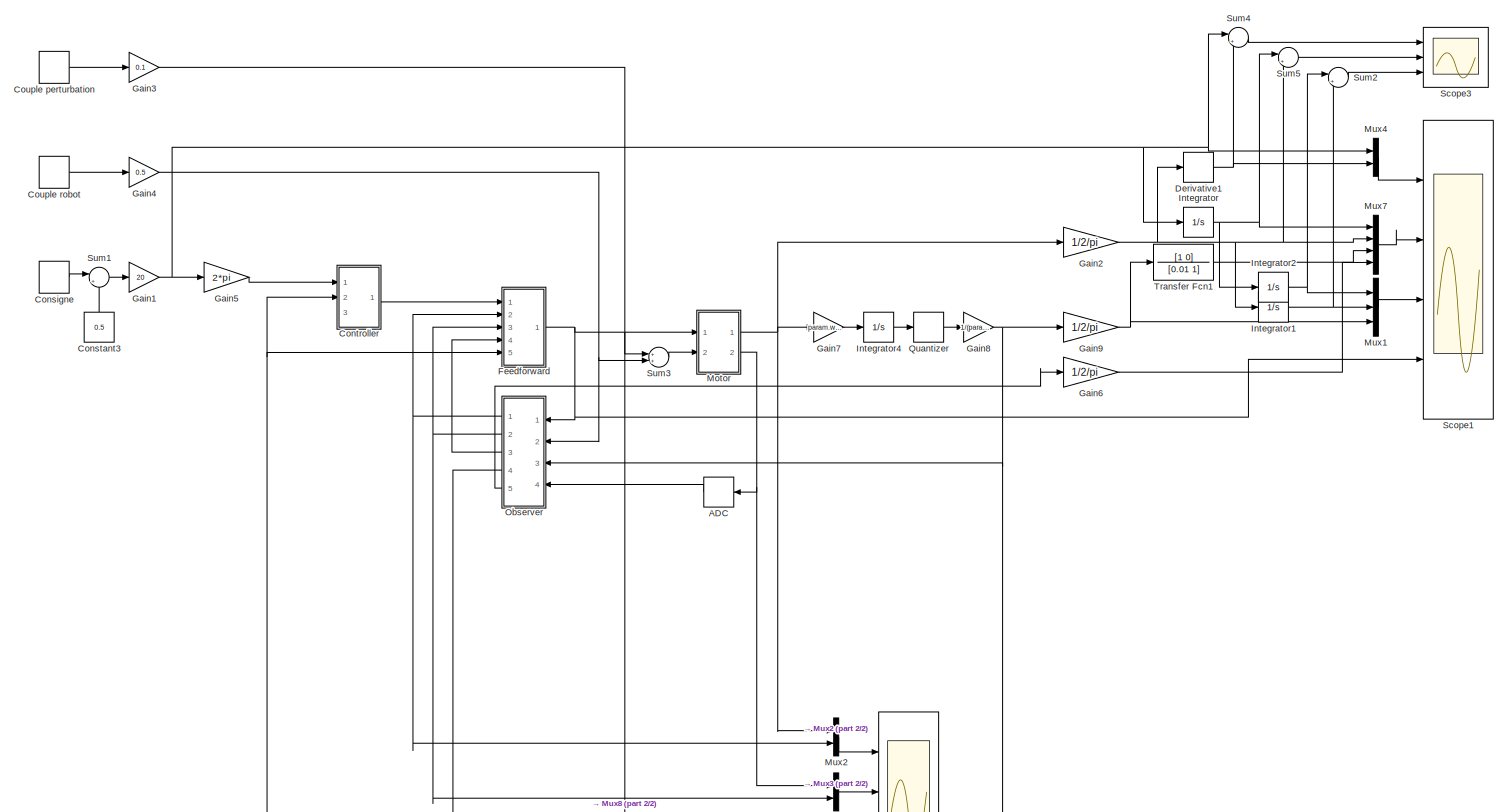
[diagram: root canvas - part 1/2, most of the canvas]
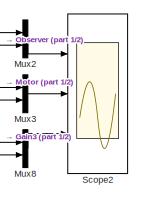
[diagram: root canvas - part 2/2, bottom center region]
MODEL slx_29d31e49ffb2
KIND model
BLOCK [TransportDelay] ADC
  DelayTime = param.adc.retard
  Ports = [1, 1]
BLOCK [DiscretePulseGenerator] Consigne
  Period = 1
  PhaseDelay = 0.25/2
  Ports = [0, 1]
  PulseType = Time based
  PulseWidth = 50
BLOCK [Constant] Constant3
  Value = 0.5
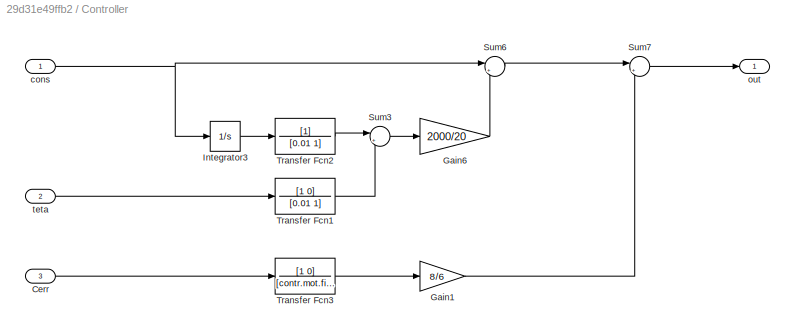
BLOCK [SubSystem] Controller
  Ports = [3, 1]
  RequestExecContextInheritance = off
BLOCK [Inport] Controller/Cerr
  IconDisplay = Port number
  Port = 3
BLOCK [Gain] Controller/Gain1
  Gain = 8/6
  OutDataTypeStr = Inherit: Inherit via internal rule
  ParamDataTypeStr = Inherit: Inherit via internal rule
  SaturateOnIntegerOverflow = off
BLOCK [Gain] Controller/Gain6
  Gain = 2000/20
  OutDataTypeStr = Inherit: Inherit via internal rule
  ParamDataTypeStr = Inherit: Inherit via internal rule
  SaturateOnIntegerOverflow = off
BLOCK [Integrator] Controller/Integrator3
  Ports = [1, 1]
BLOCK [Sum] Controller/Sum3
  IconShape = round
  InputSameDT = off
  Inputs = |+-
  OutDataTypeStr = Inherit: Inherit via internal rule
  Ports = [2, 1]
  SaturateOnIntegerOverflow = off
BLOCK [Sum] Controller/Sum6
  IconShape = round
  InputSameDT = off
  Inputs = |++
  OutDataTypeStr = Inherit: Inherit via internal rule
  Ports = [2, 1]
  SaturateOnIntegerOverflow = off
BLOCK [Sum] Controller/Sum7
  IconShape = round
  InputSameDT = off
  Inputs = |++
  OutDataTypeStr = Inherit: Inherit via internal rule
  Ports = [2, 1]
  SaturateOnIntegerOverflow = off
BLOCK [TransferFcn] Controller/Transfer Fcn1
  Denominator = [0.01 1]
  Numerator = [1 0]
BLOCK [TransferFcn] Controller/Transfer Fcn2
  Denominator = [0.01 1]
BLOCK [TransferFcn] Controller/Transfer Fcn3
  Denominator = [contr.mot.filter 1]
  Numerator = [1 0]
BLOCK [Inport] Controller/cons
  IconDisplay = Port number
BLOCK [Outport] Controller/out
  IconDisplay = Port number
BLOCK [Inport] Controller/teta
  IconDisplay = Port number
  Port = 2
BLOCK [DiscretePulseGenerator] Couple perturbation
  Period = 2/3
  PhaseDelay = 0.3
  Ports = [0, 1]
  PulseType = Time based
  PulseWidth = 50
BLOCK [DiscretePulseGenerator] Couple robot
  Period = 1.5
  PhaseDelay = 0.1
  Ports = [0, 1]
  PulseType = Time based
  PulseWidth = 50
BLOCK [Derivative] Derivative1
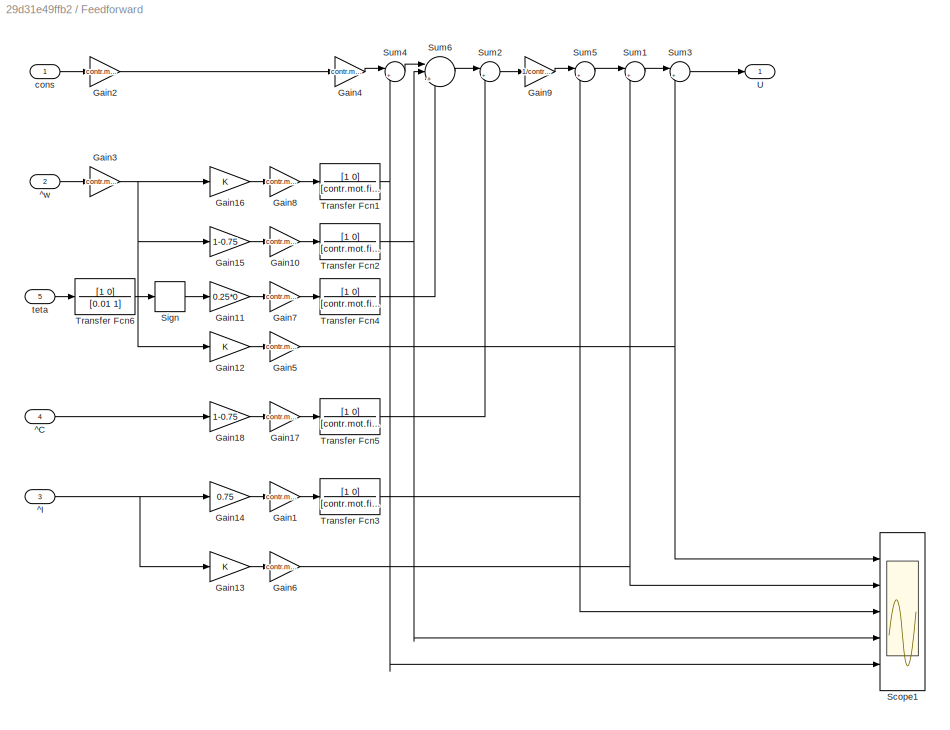
BLOCK [SubSystem] Feedforward
  Ports = [5, 1]
  RequestExecContextInheritance = off
BLOCK [Gain] Feedforward/Gain1
  Gain = contr.mot.L
  OutDataTypeStr = Inherit: Inherit via internal rule
  ParamDataTypeStr = Inherit: Inherit via internal rule
  SaturateOnIntegerOverflow = off
BLOCK [Gain] Feedforward/Gain10
  Gain = contr.mot.fv*contr.mot.L
  OutDataTypeStr = Inherit: Inherit via internal rule
  ParamDataTypeStr = Inherit: Inherit via internal rule
  SaturateOnIntegerOverflow = off
BLOCK [Gain] Feedforward/Gain11
  Gain = 0.25*0
  OutDataTypeStr = Inherit: Inherit via internal rule
  ParamDataTypeStr = Inherit: Inherit via internal rule
  SaturateOnIntegerOverflow = off
BLOCK [Gain] Feedforward/Gain12
  OutDataTypeStr = Inherit: Inherit via internal rule
  ParamDataTypeStr = Inherit: Inherit via internal rule
  SaturateOnIntegerOverflow = off
BLOCK [Gain] Feedforward/Gain13
  OutDataTypeStr = Inherit: Inherit via internal rule
  ParamDataTypeStr = Inherit: Inherit via internal rule
  SaturateOnIntegerOverflow = off
BLOCK [Gain] Feedforward/Gain14
  Gain = 0.75
  OutDataTypeStr = Inherit: Inherit via internal rule
  ParamDataTypeStr = Inherit: Inherit via internal rule
  SaturateOnIntegerOverflow = off
BLOCK [Gain] Feedforward/Gain15
  Gain = 1-0.75
  OutDataTypeStr = Inherit: Inherit via internal rule
  ParamDataTypeStr = Inherit: Inherit via internal rule
  SaturateOnIntegerOverflow = off
BLOCK [Gain] Feedforward/Gain16
  OutDataTypeStr = Inherit: Inherit via internal rule
  ParamDataTypeStr = Inherit: Inherit via internal rule
  SaturateOnIntegerOverflow = off
BLOCK [Gain] Feedforward/Gain17
  Gain = contr.mot.L
  OutDataTypeStr = Inherit: Inherit via internal rule
  ParamDataTypeStr = Inherit: Inherit via internal rule
  SaturateOnIntegerOverflow = off
BLOCK [Gain] Feedforward/Gain18
  Gain = 1-0.75
  OutDataTypeStr = Inherit: Inherit via internal rule
  ParamDataTypeStr = Inherit: Inherit via internal rule
  SaturateOnIntegerOverflow = off
BLOCK [Gain] Feedforward/Gain2
  Gain = contr.mot.rr
  OutDataTypeStr = Inherit: Inherit via internal rule
  ParamDataTypeStr = Inherit: Inherit via internal rule
  SaturateOnIntegerOverflow = off
BLOCK [Gain] Feedforward/Gain3
  Gain = contr.mot.rr
  OutDataTypeStr = Inherit: Inherit via internal rule
  ParamDataTypeStr = Inherit: Inherit via internal rule
  SaturateOnIntegerOverflow = off
BLOCK [Gain] Feedforward/Gain4
  Gain = contr.mot.J
  OutDataTypeStr = Inherit: Inherit via internal rule
  ParamDataTypeStr = Inherit: Inherit via internal rule
  SaturateOnIntegerOverflow = off
BLOCK [Gain] Feedforward/Gain5
  Gain = contr.mot.Ke
  OutDataTypeStr = Inherit: Inherit via internal rule
  ParamDataTypeStr = Inherit: Inherit via internal rule
  SaturateOnIntegerOverflow = off
BLOCK [Gain] Feedforward/Gain6
  Gain = contr.mot.R
  OutDataTypeStr = Inherit: Inherit via internal rule
  ParamDataTypeStr = Inherit: Inherit via internal rule
  SaturateOnIntegerOverflow = off
BLOCK [Gain] Feedforward/Gain7
  Gain = contr.mot.fs*contr.mot.L
  OutDataTypeStr = Inherit: Inherit via internal rule
  ParamDataTypeStr = Inherit: Inherit via internal rule
  SaturateOnIntegerOverflow = off
BLOCK [Gain] Feedforward/Gain8
  Gain = contr.mot.J
  OutDataTypeStr = Inherit: Inherit via internal rule
  ParamDataTypeStr = Inherit: Inherit via internal rule
  SaturateOnIntegerOverflow = off
BLOCK [Gain] Feedforward/Gain9
  Gain = 1/contr.mot.Kc
  OutDataTypeStr = Inherit: Inherit via internal rule
  ParamDataTypeStr = Inherit: Inherit via internal rule
  SaturateOnIntegerOverflow = off
BLOCK [Scope] Feedforward/Scope1
  Floating = off
  MaxDataPoints = 500000
  NumInputPorts = 5
  Ports = [5]
  SaveName = ScopeData1
  ShowLegends = off
  TimeRange = 3
  YMax = 15~10~15000~0.03~15
  YMin = -5~-10~-15000~-0.03~-15
BLOCK [Signum] Feedforward/Sign
  ZeroCross = off
BLOCK [Sum] Feedforward/Sum1
  IconShape = round
  InputSameDT = off
  Inputs = |++
  OutDataTypeStr = Inherit: Inherit via internal rule
  Ports = [2, 1]
  SaturateOnIntegerOverflow = off
BLOCK [Sum] Feedforward/Sum2
  IconShape = round
  InputSameDT = off
  Inputs = |++
  OutDataTypeStr = Inherit: Inherit via internal rule
  Ports = [2, 1]
  SaturateOnIntegerOverflow = off
BLOCK [Sum] Feedforward/Sum3
  IconShape = round
  InputSameDT = off
  Inputs = |++
  OutDataTypeStr = Inherit: Inherit via internal rule
  Ports = [2, 1]
  SaturateOnIntegerOverflow = off
BLOCK [Sum] Feedforward/Sum4
  IconShape = round
  InputSameDT = off
  Inputs = |+-
  OutDataTypeStr = Inherit: Inherit via internal rule
  Ports = [2, 1]
  SaturateOnIntegerOverflow = off
BLOCK [Sum] Feedforward/Sum5
  IconShape = round
  InputSameDT = off
  Inputs = |++
  OutDataTypeStr = Inherit: Inherit via internal rule
  Ports = [2, 1]
  SaturateOnIntegerOverflow = off
BLOCK [Sum] Feedforward/Sum6
  IconShape = round
  InputSameDT = off
  Inputs = ||+++
  OutDataTypeStr = Inherit: Inherit via internal rule
  Ports = [3, 1]
  SaturateOnIntegerOverflow = off
BLOCK [TransferFcn] Feedforward/Transfer Fcn1
  Denominator = [contr.mot.filter 1]
  Numerator = [1 0]
BLOCK [TransferFcn] Feedforward/Transfer Fcn2
  Denominator = [contr.mot.filter 1]
  Numerator = [1 0]
BLOCK [TransferFcn] Feedforward/Transfer Fcn3
  Denominator = [contr.mot.filter 1]
  Numerator = [1 0]
BLOCK [TransferFcn] Feedforward/Transfer Fcn4
  Denominator = [contr.mot.filter 1]
  Numerator = [1 0]
BLOCK [TransferFcn] Feedforward/Transfer Fcn5
  Denominator = [contr.mot.filter 1]
  Numerator = [1 0]
BLOCK [TransferFcn] Feedforward/Transfer Fcn6
  Denominator = [0.01 1]
  Numerator = [1 0]
BLOCK [Outport] Feedforward/U
  IconDisplay = Port number
BLOCK [Inport] Feedforward/^C
  IconDisplay = Port number
  Port = 4
BLOCK [Inport] Feedforward/^I
  IconDisplay = Port number
  Port = 3
BLOCK [Inport] Feedforward/^w
  IconDisplay = Port number
  Port = 2
BLOCK [Inport] Feedforward/cons
  IconDisplay = Port number
BLOCK [Inport] Feedforward/teta
  IconDisplay = Port number
  Port = 5
BLOCK [Gain] Gain1
  Gain = 20
  OutDataTypeStr = Inherit: Inherit via internal rule
  ParamDataTypeStr = Inherit: Inherit via internal rule
  SaturateOnIntegerOverflow = off
BLOCK [Gain] Gain2
  Gain = 1/2/pi
  OutDataTypeStr = Inherit: Inherit via internal rule
  ParamDataTypeStr = Inherit: Inherit via internal rule
  SaturateOnIntegerOverflow = off
BLOCK [Gain] Gain3
  Gain = 0.1
  OutDataTypeStr = Inherit: Inherit via internal rule
  ParamDataTypeStr = Inherit: Inherit via internal rule
  SaturateOnIntegerOverflow = off
BLOCK [Gain] Gain4
  Gain = 0.5
  OutDataTypeStr = Inherit: Inherit via internal rule
  ParamDataTypeStr = Inherit: Inherit via internal rule
  SaturateOnIntegerOverflow = off
BLOCK [Gain] Gain5
  Gain = 2*pi
  OutDataTypeStr = Inherit: Inherit via internal rule
  ParamDataTypeStr = Inherit: Inherit via internal rule
  SaturateOnIntegerOverflow = off
BLOCK [Gain] Gain6
  Gain = 1/2/pi
  OutDataTypeStr = Inherit: Inherit via internal rule
  ParamDataTypeStr = Inherit: Inherit via internal rule
  SaturateOnIntegerOverflow = off
BLOCK [Gain] Gain7
  Gain = param.wheel.D/2
  OutDataTypeStr = Inherit: Inherit via internal rule
  ParamDataTypeStr = Inherit: Inherit via internal rule
  SaturateOnIntegerOverflow = off
BLOCK [Gain] Gain8
  Gain = 1/(param.wheel.D/2)
  OutDataTypeStr = Inherit: Inherit via internal rule
  ParamDataTypeStr = Inherit: Inherit via internal rule
  SaturateOnIntegerOverflow = off
BLOCK [Gain] Gain9
  Gain = 1/2/pi
  OutDataTypeStr = Inherit: Inherit via internal rule
  ParamDataTypeStr = Inherit: Inherit via internal rule
  SaturateOnIntegerOverflow = off
BLOCK [Integrator] Integrator
  Ports = [1, 1]
BLOCK [Integrator] Integrator1
  Ports = [1, 1]
BLOCK [Integrator] Integrator2
  Ports = [1, 1]
BLOCK [Integrator] Integrator4
  Ports = [1, 1]
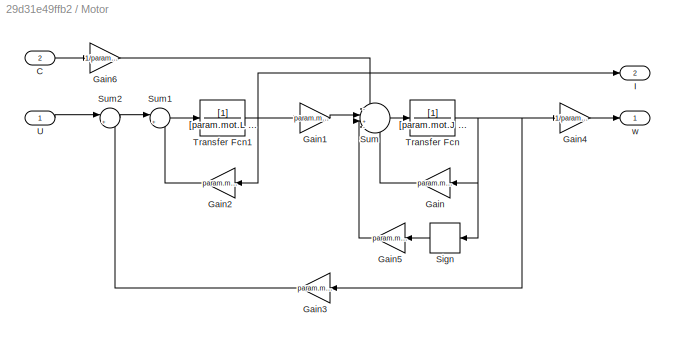
BLOCK [SubSystem] Motor
  Ports = [2, 2]
  RequestExecContextInheritance = off
BLOCK [Inport] Motor/C
  IconDisplay = Port number
  Port = 2
BLOCK [Gain] Motor/Gain
  Gain = param.mot.fv
  OutDataTypeStr = Inherit: Inherit via internal rule
  ParamDataTypeStr = Inherit: Inherit via internal rule
  SaturateOnIntegerOverflow = off
BLOCK [Gain] Motor/Gain1
  Gain = param.mot.Kc
  OutDataTypeStr = Inherit: Inherit via internal rule
  ParamDataTypeStr = Inherit: Inherit via internal rule
  SaturateOnIntegerOverflow = off
BLOCK [Gain] Motor/Gain2
  Gain = param.mot.R
  OutDataTypeStr = Inherit: Inherit via internal rule
  ParamDataTypeStr = Inherit: Inherit via internal rule
  SaturateOnIntegerOverflow = off
BLOCK [Gain] Motor/Gain3
  Gain = param.mot.Ke
  OutDataTypeStr = Inherit: Inherit via internal rule
  ParamDataTypeStr = Inherit: Inherit via internal rule
  SaturateOnIntegerOverflow = off
BLOCK [Gain] Motor/Gain4
  Gain = 1/param.mot.rr
  OutDataTypeStr = Inherit: Inherit via internal rule
  ParamDataTypeStr = Inherit: Inherit via internal rule
  SaturateOnIntegerOverflow = off
BLOCK [Gain] Motor/Gain5
  Gain = param.mot.fs
  OutDataTypeStr = Inherit: Inherit via internal rule
  ParamDataTypeStr = Inherit: Inherit via internal rule
  SaturateOnIntegerOverflow = off
BLOCK [Gain] Motor/Gain6
  Gain = 1/param.mot.rr/param.mot.rn
  OutDataTypeStr = Inherit: Inherit via internal rule
  ParamDataTypeStr = Inherit: Inherit via internal rule
  SaturateOnIntegerOverflow = off
BLOCK [Outport] Motor/I
  IconDisplay = Port number
  Port = 2
BLOCK [Signum] Motor/Sign
  ZeroCross = off
BLOCK [Sum] Motor/Sum
  IconShape = round
  InputSameDT = off
  Inputs = -|+--
  OutDataTypeStr = Inherit: Inherit via internal rule
  Ports = [4, 1]
  SaturateOnIntegerOverflow = off
BLOCK [Sum] Motor/Sum1
  IconShape = round
  InputSameDT = off
  Inputs = |+-
  OutDataTypeStr = Inherit: Inherit via internal rule
  Ports = [2, 1]
  SaturateOnIntegerOverflow = off
BLOCK [Sum] Motor/Sum2
  IconShape = round
  InputSameDT = off
  Inputs = |+-
  OutDataTypeStr = Inherit: Inherit via internal rule
  Ports = [2, 1]
  SaturateOnIntegerOverflow = off
BLOCK [TransferFcn] Motor/Transfer Fcn
  Denominator = [param.mot.J 0]
BLOCK [TransferFcn] Motor/Transfer Fcn1
  Denominator = [param.mot.L 0]
BLOCK [Inport] Motor/U
  IconDisplay = Port number
BLOCK [Outport] Motor/w
  IconDisplay = Port number
BLOCK [Mux] Mux1
  DisplayOption = bar
  Inputs = 3
  Ports = [3, 1]
BLOCK [Mux] Mux2
  DisplayOption = bar
  Inputs = 2
  Ports = [2, 1]
BLOCK [Mux] Mux3
  DisplayOption = bar
  Inputs = 2
  Ports = [2, 1]
BLOCK [Mux] Mux4
  DisplayOption = bar
  Inputs = 2
  Ports = [2, 1]
BLOCK [Mux] Mux7
  DisplayOption = bar
  Ports = [4, 1]
BLOCK [Mux] Mux8
  DisplayOption = bar
  Inputs = 2
  Ports = [2, 1]
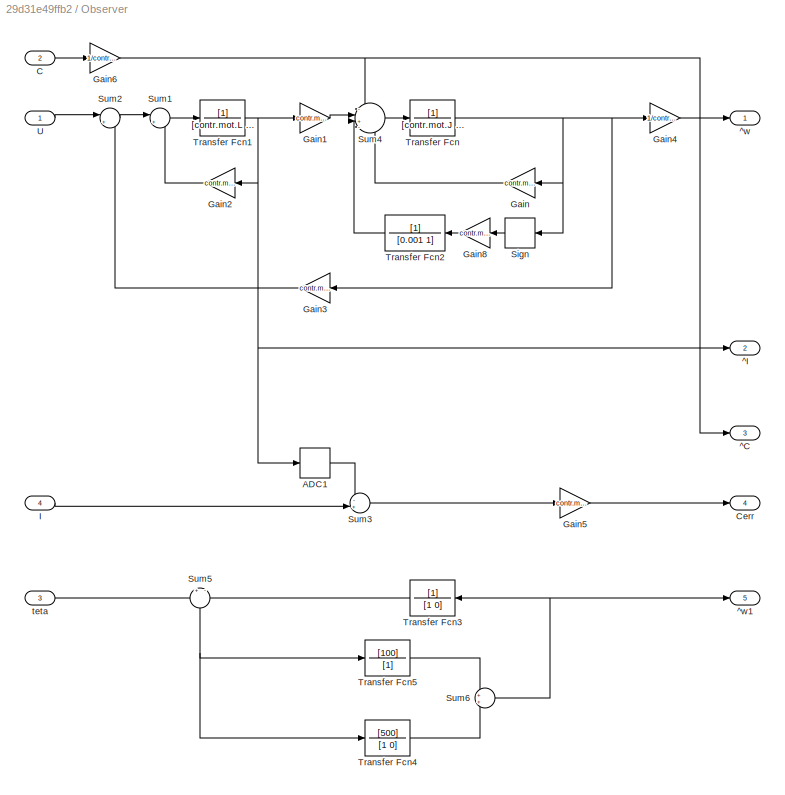
BLOCK [SubSystem] Observer
  Ports = [4, 5]
  RequestExecContextInheritance = off
BLOCK [TransportDelay] Observer/ADC1
  DelayTime = contr.adc.retard
  Ports = [1, 1]
BLOCK [Inport] Observer/C
  IconDisplay = Port number
  Port = 2
BLOCK [Outport] Observer/Cerr
  IconDisplay = Port number
  Port = 4
BLOCK [Gain] Observer/Gain
  Gain = contr.mot.fv
  OutDataTypeStr = Inherit: Inherit via internal rule
  ParamDataTypeStr = Inherit: Inherit via internal rule
  SaturateOnIntegerOverflow = off
BLOCK [Gain] Observer/Gain1
  Gain = contr.mot.Kc
  OutDataTypeStr = Inherit: Inherit via internal rule
  ParamDataTypeStr = Inherit: Inherit via internal rule
  SaturateOnIntegerOverflow = off
BLOCK [Gain] Observer/Gain2
  Gain = contr.mot.R
  OutDataTypeStr = Inherit: Inherit via internal rule
  ParamDataTypeStr = Inherit: Inherit via internal rule
  SaturateOnIntegerOverflow = off
BLOCK [Gain] Observer/Gain3
  Gain = contr.mot.Ke
  OutDataTypeStr = Inherit: Inherit via internal rule
  ParamDataTypeStr = Inherit: Inherit via internal rule
  SaturateOnIntegerOverflow = off
BLOCK [Gain] Observer/Gain4
  Gain = 1/contr.mot.rr
  OutDataTypeStr = Inherit: Inherit via internal rule
  ParamDataTypeStr = Inherit: Inherit via internal rule
  SaturateOnIntegerOverflow = off
BLOCK [Gain] Observer/Gain5
  Gain = contr.mot.Kc*contr.mot.rr*contr.mot.rn
  OutDataTypeStr = Inherit: Inherit via internal rule
  ParamDataTypeStr = Inherit: Inherit via internal rule
  SaturateOnIntegerOverflow = off
BLOCK [Gain] Observer/Gain6
  Gain = 1/contr.mot.rr/contr.mot.rn
  OutDataTypeStr = Inherit: Inherit via internal rule
  ParamDataTypeStr = Inherit: Inherit via internal rule
  SaturateOnIntegerOverflow = off
BLOCK [Gain] Observer/Gain8
  Gain = contr.mot.fs
  OutDataTypeStr = Inherit: Inherit via internal rule
  ParamDataTypeStr = Inherit: Inherit via internal rule
  SaturateOnIntegerOverflow = off
BLOCK [Inport] Observer/I
  IconDisplay = Port number
  Port = 4
BLOCK [Signum] Observer/Sign
  ZeroCross = off
BLOCK [Sum] Observer/Sum1
  IconShape = round
  InputSameDT = off
  Inputs = |+-
  OutDataTypeStr = Inherit: Inherit via internal rule
  Ports = [2, 1]
  SaturateOnIntegerOverflow = off
BLOCK [Sum] Observer/Sum2
  IconShape = round
  InputSameDT = off
  Inputs = |+-
  OutDataTypeStr = Inherit: Inherit via internal rule
  Ports = [2, 1]
  SaturateOnIntegerOverflow = off
BLOCK [Sum] Observer/Sum3
  IconShape = round
  InputSameDT = off
  Inputs = -+|
  OutDataTypeStr = Inherit: Inherit via internal rule
  Ports = [2, 1]
  SaturateOnIntegerOverflow = off
BLOCK [Sum] Observer/Sum4
  IconShape = round
  InputSameDT = off
  Inputs = -|+--
  OutDataTypeStr = Inherit: Inherit via internal rule
  Ports = [4, 1]
  SaturateOnIntegerOverflow = off
BLOCK [Sum] Observer/Sum5
  IconShape = round
  InputSameDT = off
  Inputs = +|-
  OutDataTypeStr = Inherit: Inherit via internal rule
  Ports = [2, 1]
  SaturateOnIntegerOverflow = off
BLOCK [Sum] Observer/Sum6
  IconShape = round
  InputSameDT = off
  OutDataTypeStr = Inherit: Inherit via internal rule
  Ports = [2, 1]
  SaturateOnIntegerOverflow = off
BLOCK [TransferFcn] Observer/Transfer Fcn
  Denominator = [contr.mot.J 0]
BLOCK [TransferFcn] Observer/Transfer Fcn1
  Denominator = [contr.mot.L 0]
BLOCK [TransferFcn] Observer/Transfer Fcn2
  Denominator = [0.001 1]
BLOCK [TransferFcn] Observer/Transfer Fcn3
  Denominator = [1 0]
BLOCK [TransferFcn] Observer/Transfer Fcn4
  Denominator = [1 0]
  Numerator = [500]
BLOCK [TransferFcn] Observer/Transfer Fcn5
  Denominator = [1]
  Numerator = [100]
BLOCK [Inport] Observer/U
  IconDisplay = Port number
BLOCK [Outport] Observer/^C
  IconDisplay = Port number
  Port = 3
BLOCK [Outport] Observer/^I
  IconDisplay = Port number
  Port = 2
BLOCK [Outport] Observer/^w
  IconDisplay = Port number
BLOCK [Outport] Observer/^w1
  IconDisplay = Port number
  Port = 5
BLOCK [Inport] Observer/teta
  IconDisplay = Port number
  Port = 3
BLOCK [Quantizer] Quantizer
  QuantizationInterval = param.codeur.resolution
BLOCK [Scope] Scope1
  Floating = off
  MaxDataPoints = 500000
  NumInputPorts = 4
  Ports = [4]
  SaveName = ScopeData2
  ShowLegends = off
  TimeRange = 3
  YMax = 60~4~4~25
  YMin = -60~-2~-0.5~-10
BLOCK [Scope] Scope2
  Floating = off
  MaxDataPoints = 500000
  NumInputPorts = 3
  Ports = [3]
  ShowLegends = off
  TimeRange = 3
  YMax = 25~5~0.1
  YMin = -10~-3~-0.04
BLOCK [Scope] Scope3
  Floating = off
  MaxDataPoints = 500000
  NumInputPorts = 3
  Ports = [3]
  SaveName = ScopeData3
  ShowLegends = off
  TimeRange = 3
  YMax = 80~0.09999999999999998~0.0014
  YMin = -80~-0.15~-0.0006000000000000001
BLOCK [Sum] Sum1
  IconShape = round
  InputSameDT = off
  Inputs = |+-
  OutDataTypeStr = Inherit: Inherit via internal rule
  Ports = [2, 1]
  SaturateOnIntegerOverflow = off
BLOCK [Sum] Sum2
  IconShape = round
  InputSameDT = off
  Inputs = |+-
  OutDataTypeStr = Inherit: Inherit via internal rule
  Ports = [2, 1]
  SaturateOnIntegerOverflow = off
BLOCK [Sum] Sum3
  IconShape = round
  InputSameDT = off
  Inputs = ++|
  OutDataTypeStr = Inherit: Inherit via internal rule
  Ports = [2, 1]
  SaturateOnIntegerOverflow = off
BLOCK [Sum] Sum4
  IconShape = round
  InputSameDT = off
  Inputs = |+-
  OutDataTypeStr = Inherit: Inherit via internal rule
  Ports = [2, 1]
  SaturateOnIntegerOverflow = off
BLOCK [Sum] Sum5
  IconShape = round
  InputSameDT = off
  Inputs = |+-
  OutDataTypeStr = Inherit: Inherit via internal rule
  Ports = [2, 1]
  SaturateOnIntegerOverflow = off
BLOCK [TransferFcn] Transfer Fcn1
  Denominator = [0.01 1]
  Numerator = [1 0]
LINE ADC:1 -> Observer:4
LINE Consigne:1 -> Sum1:1
LINE Constant3:1 -> Sum1:2
LINE Controller/Cerr:1 -> Controller/Transfer Fcn3:1
LINE Controller/Gain1:1 -> Controller/Sum7:2
LINE Controller/Gain6:1 -> Controller/Sum6:2
LINE Controller/Integrator3:1 -> Controller/Transfer Fcn2:1
LINE Controller/Sum3:1 -> Controller/Gain6:1
LINE Controller/Sum6:1 -> Controller/Sum7:1
LINE Controller/Sum7:1 -> Controller/out:1
LINE Controller/Transfer Fcn1:1 -> Controller/Sum3:2
LINE Controller/Transfer Fcn2:1 -> Controller/Sum3:1
LINE Controller/Transfer Fcn3:1 -> Controller/Gain1:1
NET Controller/cons:1 -> Controller/Integrator3:1, Controller/Sum6:1
LINE Controller/teta:1 -> Controller/Transfer Fcn1:1
LINE Controller:1 -> Feedforward:1
LINE Couple perturbation:1 -> Gain3:1
LINE Couple robot:1 -> Gain4:1
NET Derivative1:1 -> Mux4:2, Sum4:2
LINE Feedforward/Gain10:1 -> Feedforward/Transfer Fcn2:1
LINE Feedforward/Gain11:1 -> Feedforward/Gain7:1
LINE Feedforward/Gain12:1 -> Feedforward/Gain5:1
LINE Feedforward/Gain13:1 -> Feedforward/Gain6:1
LINE Feedforward/Gain14:1 -> Feedforward/Gain1:1
LINE Feedforward/Gain15:1 -> Feedforward/Gain10:1
LINE Feedforward/Gain16:1 -> Feedforward/Gain8:1
LINE Feedforward/Gain17:1 -> Feedforward/Transfer Fcn5:1
LINE Feedforward/Gain18:1 -> Feedforward/Gain17:1
LINE Feedforward/Gain1:1 -> Feedforward/Transfer Fcn3:1
LINE Feedforward/Gain2:1 -> Feedforward/Gain4:1
NET Feedforward/Gain3:1 -> Feedforward/Gain12:1, Feedforward/Gain15:1, Feedforward/Gain16:1
LINE Feedforward/Gain4:1 -> Feedforward/Sum4:1
NET Feedforward/Gain5:1 -> Feedforward/Scope1:1, Feedforward/Sum3:2
NET Feedforward/Gain6:1 -> Feedforward/Scope1:2, Feedforward/Sum1:2
LINE Feedforward/Gain7:1 -> Feedforward/Transfer Fcn4:1
LINE Feedforward/Gain8:1 -> Feedforward/Transfer Fcn1:1
LINE Feedforward/Gain9:1 -> Feedforward/Sum5:1
LINE Feedforward/Sign:1 -> Feedforward/Gain11:1
LINE Feedforward/Sum1:1 -> Feedforward/Sum3:1
LINE Feedforward/Sum2:1 -> Feedforward/Gain9:1
LINE Feedforward/Sum3:1 -> Feedforward/U:1
LINE Feedforward/Sum4:1 -> Feedforward/Sum6:1
LINE Feedforward/Sum5:1 -> Feedforward/Sum1:1
LINE Feedforward/Sum6:1 -> Feedforward/Sum2:1
NET Feedforward/Transfer Fcn1:1 -> Feedforward/Scope1:5, Feedforward/Sum4:2
NET Feedforward/Transfer Fcn2:1 -> Feedforward/Scope1:4, Feedforward/Sum6:2
NET Feedforward/Transfer Fcn3:1 -> Feedforward/Scope1:3, Feedforward/Sum5:2
LINE Feedforward/Transfer Fcn4:1 -> Feedforward/Sum6:3
LINE Feedforward/Transfer Fcn5:1 -> Feedforward/Sum2:2
LINE Feedforward/Transfer Fcn6:1 -> Feedforward/Sign:1
LINE Feedforward/^C:1 -> Feedforward/Gain18:1
NET Feedforward/^I:1 -> Feedforward/Gain13:1, Feedforward/Gain14:1
LINE Feedforward/^w:1 -> Feedforward/Gain3:1
LINE Feedforward/cons:1 -> Feedforward/Gain2:1
LINE Feedforward/teta:1 -> Feedforward/Transfer Fcn6:1
NET Feedforward:1 -> Motor:1, Observer:1, Scope1:4
NET Gain1:1 -> Gain5:1, Integrator:1, Mux4:1, Sum4:1
NET Gain2:1 -> Derivative1:1, Integrator1:1, Mux7:2, Sum5:2
NET Gain3:1 -> Mux8:1, Sum3:1
NET Gain4:1 -> Observer:2, Sum3:2
LINE Gain5:1 -> Controller:1
LINE Gain6:1 -> Mux7:4
LINE Gain7:1 -> Integrator4:1
NET Gain8:1 -> Controller:2, Feedforward:5, Gain9:1, Observer:3
NET Gain9:1 -> Mux1:3, Transfer Fcn1:1
NET Integrator1:1 -> Mux1:2, Sum2:2
NET Integrator2:1 -> Mux1:1, Sum2:1
LINE Integrator4:1 -> Quantizer:1
NET Integrator:1 -> Integrator2:1, Mux7:1, Sum5:1
LINE Motor/C:1 -> Motor/Gain6:1
LINE Motor/Gain1:1 -> Motor/Sum:2
LINE Motor/Gain2:1 -> Motor/Sum1:2
LINE Motor/Gain3:1 -> Motor/Sum2:2
LINE Motor/Gain4:1 -> Motor/w:1
LINE Motor/Gain5:1 -> Motor/Sum:3
LINE Motor/Gain6:1 -> Motor/Sum:1
LINE Motor/Gain:1 -> Motor/Sum:4
LINE Motor/Sign:1 -> Motor/Gain5:1
LINE Motor/Sum1:1 -> Motor/Transfer Fcn1:1
LINE Motor/Sum2:1 -> Motor/Sum1:1
LINE Motor/Sum:1 -> Motor/Transfer Fcn:1
NET Motor/Transfer Fcn1:1 -> Motor/Gain1:1, Motor/Gain2:1, Motor/I:1
NET Motor/Transfer Fcn:1 -> Motor/Gain3:1, Motor/Gain4:1, Motor/Gain:1, Motor/Sign:1
LINE Motor/U:1 -> Motor/Sum2:1
NET Motor:1 -> Gain2:1, Gain7:1, Mux2:1
NET Motor:2 -> ADC:1, Mux3:1
LINE Mux1:1 -> Scope1:3
LINE Mux2:1 -> Scope2:1
LINE Mux3:1 -> Scope2:2
LINE Mux4:1 -> Scope1:1
LINE Mux7:1 -> Scope1:2
LINE Mux8:1 -> Scope2:3
LINE Observer/ADC1:1 -> Observer/Sum3:1
LINE Observer/C:1 -> Observer/Gain6:1
LINE Observer/Gain1:1 -> Observer/Sum4:2
LINE Observer/Gain2:1 -> Observer/Sum1:2
LINE Observer/Gain3:1 -> Observer/Sum2:2
LINE Observer/Gain4:1 -> Observer/^w:1
LINE Observer/Gain5:1 -> Observer/Cerr:1
NET Observer/Gain6:1 -> Observer/Sum4:1, Observer/^C:1
LINE Observer/Gain8:1 -> Observer/Transfer Fcn2:1
LINE Observer/Gain:1 -> Observer/Sum4:4
LINE Observer/I:1 -> Observer/Sum3:2
LINE Observer/Sign:1 -> Observer/Gain8:1
LINE Observer/Sum1:1 -> Observer/Transfer Fcn1:1
LINE Observer/Sum2:1 -> Observer/Sum1:1
LINE Observer/Sum3:1 -> Observer/Gain5:1
LINE Observer/Sum4:1 -> Observer/Transfer Fcn:1
NET Observer/Sum5:1 -> Observer/Transfer Fcn4:1, Observer/Transfer Fcn5:1
NET Observer/Sum6:1 -> Observer/Transfer Fcn3:1, Observer/^w1:1
NET Observer/Transfer Fcn1:1 -> Observer/ADC1:1, Observer/Gain1:1, Observer/Gain2:1, Observer/^I:1
LINE Observer/Transfer Fcn2:1 -> Observer/Sum4:3
LINE Observer/Transfer Fcn3:1 -> Observer/Sum5:2
LINE Observer/Transfer Fcn4:1 -> Observer/Sum6:2
LINE Observer/Transfer Fcn5:1 -> Observer/Sum6:1
NET Observer/Transfer Fcn:1 -> Observer/Gain3:1, Observer/Gain4:1, Observer/Gain:1, Observer/Sign:1
LINE Observer/U:1 -> Observer/Sum2:1
LINE Observer/teta:1 -> Observer/Sum5:1
NET Observer:1 -> Feedforward:2, Mux2:2
NET Observer:2 -> Feedforward:3, Mux3:2
LINE Observer:3 -> Feedforward:4
LINE Observer:4 -> Mux8:2
LINE Observer:5 -> Gain6:1
LINE Quantizer:1 -> Gain8:1
LINE Sum1:1 -> Gain1:1
LINE Sum2:1 -> Scope3:3
LINE Sum3:1 -> Motor:2
LINE Sum4:1 -> Scope3:1
LINE Sum5:1 -> Scope3:2
LINE Transfer Fcn1:1 -> Mux7:3
note: NET lines group one-source signal fan-out (src -> all destinations, sorted); 1:1 wires keep LINE
